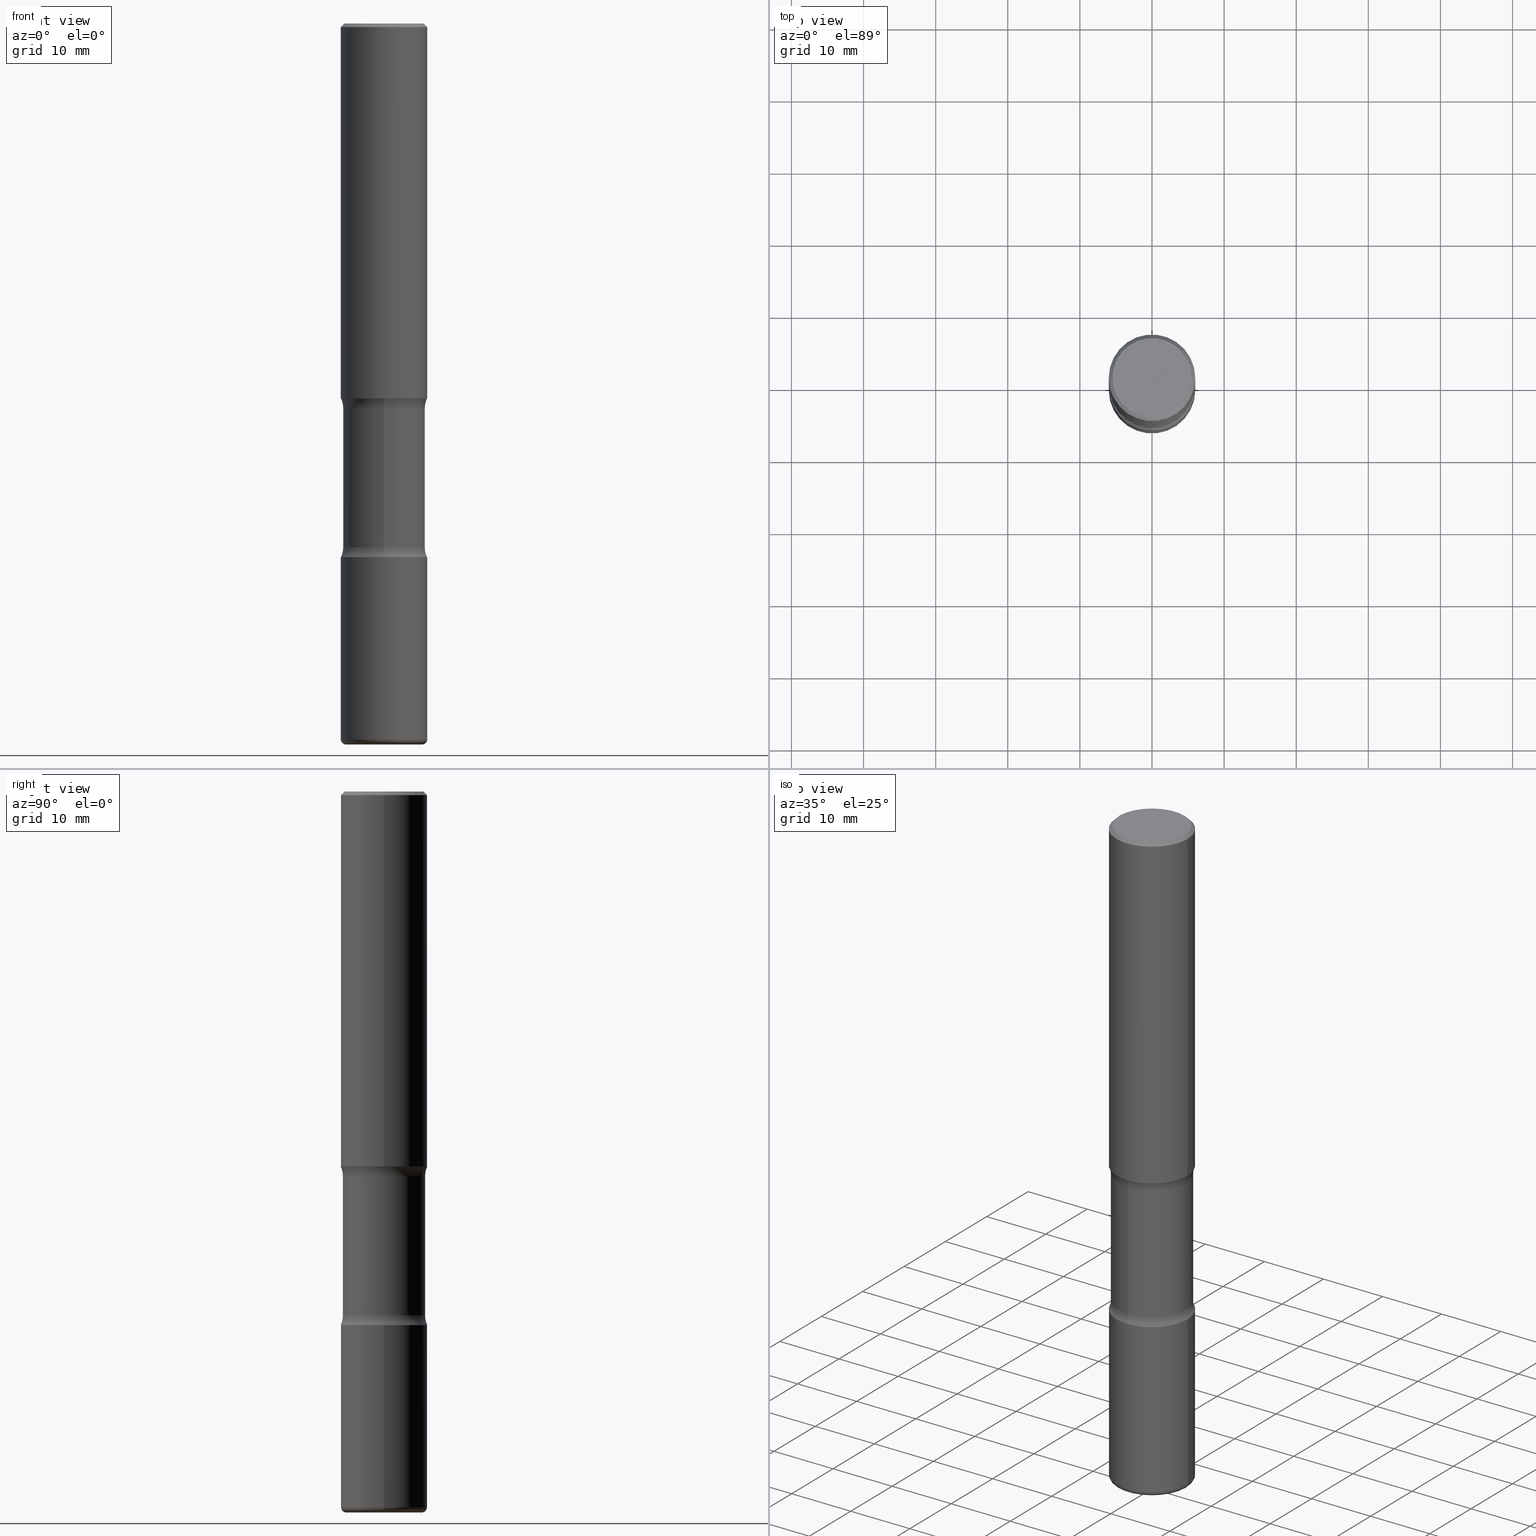
[diagram: canonical four-view strip — front | top / right | iso, engineering-drawing reading convention]
A machine part, canonical four-view strip (front | top / right | iso — engineering-drawing reading convention). The complete STEP part file that produces these views, byte-faithful:
ISO-10303-21;
HEADER;
FILE_DESCRIPTION (( 'STEP AP203' ),
    '1' );
FILE_NAME ('47693.STEP',
    '2024-03-02T07:18:12',
    ( '' ),
    ( '' ),
    'SwSTEP 2.0',
    'SolidWorks 2023',
    '' );
FILE_SCHEMA (( 'CONFIG_CONTROL_DESIGN' ));
ENDSEC;

DATA;
#1 = CARTESIAN_POINT ( 'NONE',  ( 0.2161999999999998368, -1.586759460484351002E-15, 4.268512490111238857E-18 ) ) ;
#2 = ORIENTED_EDGE ( 'NONE', *, *, #230, .F. ) ;
#3 = CARTESIAN_POINT ( 'NONE',  ( 6.994978375559792251E-29, -9.986975258939122984E-15, -2.860383398826405354 ) ) ;
#4 = CIRCLE ( 'NONE', #382, 0.2361999999999998823 ) ;
#5 = CIRCLE ( 'NONE', #410, 0.2362000000000002431 ) ;
#6 = VERTEX_POINT ( 'NONE', #487 ) ;
#7 = DATE_AND_TIME ( #210, #285 ) ;
#8 = EDGE_LOOP ( 'NONE', ( #550, #250 ) ) ;
#9 = EDGE_CURVE ( 'NONE', #55, #352, #85, .T. ) ;
#10 = ORIENTED_EDGE ( 'NONE', *, *, #50, .T. ) ;
#11 = EDGE_LOOP ( 'NONE', ( #391, #170, #16, #388 ) ) ;
#12 = AXIS2_PLACEMENT_3D ( 'NONE', #297, #470, #425 ) ;
#13 = CIRCLE ( 'NONE', #437, 0.2062000000000002442 ) ;
#14 = DIRECTION ( 'NONE',  ( -1.000000000000000000, 6.982962677686265922E-15, -4.883557194083112340E-29 ) ) ;
#15 = EDGE_CURVE ( 'NONE', #477, #130, #245, .T. ) ;
#16 = ORIENTED_EDGE ( 'NONE', *, *, #82, .T. ) ;
#17 = CARTESIAN_POINT ( 'NONE',  ( 0.000000000000000000, 0.000000000000000000, 0.000000000000000000 ) ) ;
#18 = DIRECTION ( 'NONE',  ( 6.860497997771531562E-15, 1.000000000000000000, 0.000000000000000000 ) ) ;
#19 = DIRECTION ( 'NONE',  ( -2.445468806185136597E-29, 3.491481338843145583E-15, 1.000000000000000000 ) ) ;
#20 = MANIFOLD_SOLID_BREP ( 'Body-Move/Copy2[2]', #127 ) ;
#21 = PLANE ( 'NONE',  #399 ) ;
#22 = EDGE_CURVE ( 'NONE', #467, #536, #532, .T. ) ;
#23 = VECTOR ( 'NONE', #240, 39.37007874015748143 ) ;
#24 = APPROVAL_PERSON_ORGANIZATION ( #344, #553, #386 ) ;
#25 = CYLINDRICAL_SURFACE ( 'NONE', #320, 0.2361999999999999933 ) ;
#26 = FACE_OUTER_BOUND ( 'NONE', #48, .T. ) ;
#27 = DIRECTION ( 'NONE',  ( 2.525985086076564115E-29, -3.376177443336566513E-15, -1.000000000000000000 ) ) ;
#28 = FACE_OUTER_BOUND ( 'NONE', #424, .T. ) ;
#29 =( LENGTH_UNIT ( ) NAMED_UNIT ( * ) SI_UNIT ( $, .METRE. ) );
#30 = CARTESIAN_POINT ( 'NONE',  ( -1.620449627073565067E-15, -0.2362000000000102629, -2.913399999999999768 ) ) ;
#31 = DIRECTION ( 'NONE',  ( -6.982962677686265922E-15, -1.000000000000000000, 3.376177443336566513E-15 ) ) ;
#32 = CIRCLE ( 'NONE', #319, 0.2062000000000002442 ) ;
#33 = AXIS2_PLACEMENT_3D ( 'NONE', #184, #234, #225 ) ;
#34 = ADVANCED_FACE ( 'NONE', ( #413 ), #484, .F. ) ;
#35 = CARTESIAN_POINT ( 'NONE',  ( 1.566976824872848494E-15, 0.2243999999999925499, -2.100216601173596320 ) ) ;
#36 = CARTESIAN_POINT ( 'NONE',  ( 4.890937612370289799E-31, -6.982962677686315028E-17, -0.02000000000000006981 ) ) ;
#37 = PERSON_AND_ORGANIZATION ( #434, #145 ) ;
#38 = CARTESIAN_POINT ( 'NONE',  ( 7.124628819939777829E-29, -1.017208173258562247E-14, -2.913400000000000212 ) ) ;
#39 = EDGE_LOOP ( 'NONE', ( #262, #268, #253, #385 ) ) ;
#40 = ADVANCED_FACE ( 'NONE', ( #28 ), #41, .T. ) ;
#41 = CONICAL_SURFACE ( 'NONE', #220, 0.2361999999999998823, 0.7853981633974479459 ) ;
#42 = DIRECTION ( 'NONE',  ( 6.982962677686265922E-15, 1.000000000000000000, -3.652203200085913934E-15 ) ) ;
#43 = EDGE_LOOP ( 'NONE', ( #421, #125, #56, #309 ) ) ;
#44 = PERSON_AND_ORGANIZATION ( #434, #145 ) ;
#45 = CARTESIAN_POINT ( 'NONE',  ( -0.2361999999999999933, 1.678301941865356591E-15, -1.161852468318208757E-29 ) ) ;
#46 = EDGE_LOOP ( 'NONE', ( #376, #353 ) ) ;
#47 = FACE_OUTER_BOUND ( 'NONE', #255, .T. ) ;
#48 = EDGE_LOOP ( 'NONE', ( #176, #343, #402, #52 ) ) ;
#49 = PERSON_AND_ORGANIZATION_ROLE ( 'creator' ) ;
#50 = EDGE_CURVE ( 'NONE', #305, #99, #278, .T. ) ;
#51 = APPROVAL_PERSON_ORGANIZATION ( #412, #338, #159 ) ;
#52 = ORIENTED_EDGE ( 'NONE', *, *, #82, .F. ) ;
#53 = COORDINATED_UNIVERSAL_TIME_OFFSET ( 5, 0, .BEHIND. ) ;
#54 = ADVANCED_BREP_SHAPE_REPRESENTATION ( '47693', ( #202, #20, #201, #246 ), #427 ) ;
#55 = VERTEX_POINT ( 'NONE', #30 ) ;
#56 = ORIENTED_EDGE ( 'NONE', *, *, #131, .T. ) ;
#57 = ADVANCED_FACE ( 'NONE', ( #545 ), #104, .T. ) ;
#58 = DIRECTION ( 'NONE',  ( 1.000000000000000000, -6.982962677686265133E-15, 0.000000000000000000 ) ) ;
#59 = ORIENTED_EDGE ( 'NONE', *, *, #205, .F. ) ;
#60 = AXIS2_PLACEMENT_3D ( 'NONE', #472, #556, #339 ) ;
#61 = AXIS2_PLACEMENT_3D ( 'NONE', #36, #200, #206 ) ;
#62 = CARTESIAN_POINT ( 'NONE',  ( 9.710227154047748282E-29, -1.362793696358492956E-14, -3.937000000000000277 ) ) ;
#63 = DIRECTION ( 'NONE',  ( 1.000000000000000000, -6.860497997771530774E-15, 4.842210945089756248E-29 ) ) ;
#64 = DIRECTION ( 'NONE',  ( 2.525985086076564115E-29, -3.376177443336566513E-15, -1.000000000000000000 ) ) ;
#65 = DIRECTION ( 'NONE',  ( 2.525985086076564115E-29, -3.376177443336566513E-15, -1.000000000000000000 ) ) ;
#66 = DIRECTION ( 'NONE',  ( 1.000000000000000000, -6.982962677686265922E-15, 0.000000000000000000 ) ) ;
#67 = DIRECTION ( 'NONE',  ( 1.000000000000000000, -6.982962677686267499E-15, 0.000000000000000000 ) ) ;
#68 = ADVANCED_FACE ( 'NONE', ( #451 ), #21, .F. ) ;
#69 = AXIS2_PLACEMENT_3D ( 'NONE', #299, #121, #117 ) ;
#70 = CIRCLE ( 'NONE', #180, 0.1249999999999999029 ) ;
#71 = CARTESIAN_POINT ( 'NONE',  ( -0.2362000000000000766, -1.196291564899481365E-14, -3.907000000000000028 ) ) ;
#72 = DIRECTION ( 'NONE',  ( -1.000000000000000000, 6.982962677686265922E-15, -4.876176775795935793E-29 ) ) ;
#73 = DIRECTION ( 'NONE',  ( 1.000000000000000000, -6.982962677686266711E-15, 4.876176775795935793E-29 ) ) ;
#74 = CARTESIAN_POINT ( 'NONE',  ( -1.620449627073587747E-15, -0.2362000000000074318, -2.047199999999999243 ) ) ;
#75 = EDGE_CURVE ( 'NONE', #99, #122, #274, .T. ) ;
#76 = LINE ( 'NONE', #244, #135 ) ;
#77 = LENGTH_MEASURE_WITH_UNIT ( LENGTH_MEASURE( 0.02539999999999999897 ), #29 );
#78 = DIRECTION ( 'NONE',  ( 2.525985086076564115E-29, -3.376177443336566513E-15, -1.000000000000000000 ) ) ;
#79 = DIMENSIONAL_EXPONENTS ( 1.000000000000000000, 0.000000000000000000, 0.000000000000000000, 0.000000000000000000, 0.000000000000000000, 0.000000000000000000, 0.000000000000000000 ) ;
#80 = DATE_AND_TIME ( #468, #154 ) ;
#81 = CARTESIAN_POINT ( 'NONE',  ( 0.2362000000000002153, -1.649375784469497708E-15, 1.151752954443001069E-29 ) ) ;
#82 = EDGE_CURVE ( 'NONE', #317, #536, #149, .T. ) ;
#83 = ORIENTED_EDGE ( 'NONE', *, *, #15, .F. ) ;
#84 = CARTESIAN_POINT ( 'NONE',  ( 0.000000000000000000, 0.000000000000000000, 0.000000000000000000 ) ) ;
#85 = CIRCLE ( 'NONE', #417, 0.1250000000000000000 ) ;
#86 = TOROIDAL_SURFACE ( 'NONE', #419, 0.3493999999999999884, 0.1250000000000000000 ) ;
#87 = DIRECTION ( 'NONE',  ( -2.445468806185136877E-29, 3.491481338843145188E-15, 1.000000000000000000 ) ) ;
#88 = PERSON_AND_ORGANIZATION ( #434, #145 ) ;
#89 = FACE_OUTER_BOUND ( 'NONE', #224, .T. ) ;
#90 = ORIENTED_EDGE ( 'NONE', *, *, #91, .F. ) ;
#91 = EDGE_CURVE ( 'NONE', #137, #141, #445, .T. ) ;
#92 = VERTEX_POINT ( 'NONE', #233 ) ;
#93 = AXIS2_PLACEMENT_3D ( 'NONE', #84, #292, #254 ) ;
#94 = AXIS2_PLACEMENT_3D ( 'NONE', #277, #64, #488 ) ;
#95 = ORIENTED_EDGE ( 'NONE', *, *, #280, .F. ) ;
#96 = DIRECTION ( 'NONE',  ( -2.445468806185136597E-29, 3.491481338843145583E-15, 1.000000000000000000 ) ) ;
#97 = ADVANCED_FACE ( 'NONE', ( #152 ), #329, .F. ) ;
#98 = DIRECTION ( 'NONE',  ( 2.525985086076564115E-29, -3.376177443336566513E-15, -1.000000000000000000 ) ) ;
#99 = VERTEX_POINT ( 'NONE', #364 ) ;
#100 = CARTESIAN_POINT ( 'NONE',  ( 1.649375784469567917E-15, 0.2361999999999899458, -2.913400000000000656 ) ) ;
#101 = ORIENTED_EDGE ( 'NONE', *, *, #351, .F. ) ;
#102 = AXIS2_PLACEMENT_3D ( 'NONE', #453, #65, #185 ) ;
#103 = PLANE ( 'NONE',  #94 ) ;
#104 = CYLINDRICAL_SURFACE ( 'NONE', #540, 0.2362000000000002153 ) ;
#105 = CARTESIAN_POINT ( 'NONE',  ( -1.579972688886713168E-15, -0.2244000000000099804, -2.860383398826404466 ) ) ;
#106 = EDGE_CURVE ( 'NONE', #122, #99, #4, .T. ) ;
#107 = CARTESIAN_POINT ( 'NONE',  ( 1.566976824872894642E-15, 0.2243999999999863049, -3.937000000000000721 ) ) ;
#108 = PERSON_AND_ORGANIZATION_ROLE ( 'design_owner' ) ;
#109 = DIRECTION ( 'NONE',  ( 1.000000000000000000, -6.982962677686267499E-15, 0.000000000000000000 ) ) ;
#110 = VECTOR ( 'NONE', #332, 39.37007874015748143 ) ;
#111 = AXIS2_PLACEMENT_3D ( 'NONE', #62, #318, #191 ) ;
#112 = COORDINATED_UNIVERSAL_TIME_OFFSET ( 5, 0, .BEHIND. ) ;
#113 = DIRECTION ( 'NONE',  ( -2.445468806185136597E-29, 3.491481338843145583E-15, 1.000000000000000000 ) ) ;
#114 = EDGE_CURVE ( 'NONE', #204, #208, #32, .T. ) ;
#115 = DIRECTION ( 'NONE',  ( 1.000000000000000000, 0.000000000000000000, 0.000000000000000000 ) ) ;
#116 = DIRECTION ( 'NONE',  ( 1.000000000000000000, -6.982962677686265922E-15, 0.000000000000000000 ) ) ;
#117 = DIRECTION ( 'NONE',  ( 1.000000000000000000, -6.982962677686277755E-15, 0.000000000000000000 ) ) ;
#118 = ORIENTED_EDGE ( 'NONE', *, *, #106, .T. ) ;
#119 = TOROIDAL_SURFACE ( 'NONE', #392, 0.3493999999999998218, 0.1249999999999999029 ) ;
#120 = VECTOR ( 'NONE', #261, 39.37007874015748143 ) ;
#121 = DIRECTION ( 'NONE',  ( -6.982962677686266711E-15, -1.000000000000000000, 3.491481338843145583E-15 ) ) ;
#122 = VERTEX_POINT ( 'NONE', #498 ) ;
#123 = DIRECTION ( 'NONE',  ( 2.525985086076564115E-29, -3.376177443336566513E-15, -1.000000000000000000 ) ) ;
#124 = CARTESIAN_POINT ( 'NONE',  ( 5.070539682259229331E-29, -7.426630284172150130E-15, -2.100216601173595432 ) ) ;
#125 = ORIENTED_EDGE ( 'NONE', *, *, #146, .T. ) ;
#126 = APPROVAL_DATE_TIME ( #7, #553 ) ;
#127 = CLOSED_SHELL ( 'NONE', ( #331, #40, #537, #68, #97, #500 ) ) ;
#128 = AXIS2_PLACEMENT_3D ( 'NONE', #447, #316, #270 ) ;
#129 = FACE_OUTER_BOUND ( 'NONE', #11, .T. ) ;
#130 = VERTEX_POINT ( 'NONE', #411 ) ;
#131 = EDGE_CURVE ( 'NONE', #559, #357, #426, .T. ) ;
#132 = APPROVAL_ROLE ( '' ) ;
#133 = EDGE_LOOP ( 'NONE', ( #101, #474, #510, #90 ) ) ;
#134 = ORIENTED_EDGE ( 'NONE', *, *, #493, .T. ) ;
#135 = VECTOR ( 'NONE', #418, 39.37007874015748143 ) ;
#136 = ADVANCED_FACE ( 'NONE', ( #26 ), #192, .T. ) ;
#137 = VERTEX_POINT ( 'NONE', #71 ) ;
#138 = DIRECTION ( 'NONE',  ( 2.525985086076564115E-29, -3.376177443336566513E-15, -1.000000000000000000 ) ) ;
#139 = ORIENTED_EDGE ( 'NONE', *, *, #432, .T. ) ;
#140 = FACE_OUTER_BOUND ( 'NONE', #133, .T. ) ;
#141 = VERTEX_POINT ( 'NONE', #155 ) ;
#142 = DIRECTION ( 'NONE',  ( 1.000000000000000000, -6.982962677686266711E-15, 4.876176775795936353E-29 ) ) ;
#143 = DIRECTION ( 'NONE',  ( -1.000000000000000000, 6.982962677686265922E-15, -4.883557194083112340E-29 ) ) ;
#144 = TOROIDAL_SURFACE ( 'NONE', #226, 0.2062000000000002442, 0.02999999999999969705 ) ;
#145 = ORGANIZATION ( 'UNSPECIFIED', 'UNSPECIFIED', '' ) ;
#146 = EDGE_CURVE ( 'NONE', #228, #559, #503, .T. ) ;
#147 = CARTESIAN_POINT ( 'NONE',  ( 6.990709676060807691E-29, -9.993088279580958225E-15, -2.860383398826405354 ) ) ;
#148 = DIRECTION ( 'NONE',  ( 6.982962677686265922E-15, 1.000000000000000000, -3.469747663417773452E-15 ) ) ;
#149 = LINE ( 'NONE', #107, #197 ) ;
#150 = CARTESIAN_POINT ( 'NONE',  ( 1.566976824872867821E-15, 0.2243999999999899686, -2.860383398826405799 ) ) ;
#151 = ADVANCED_FACE ( 'NONE', ( #361 ), #119, .F. ) ;
#152 = FACE_OUTER_BOUND ( 'NONE', #529, .T. ) ;
#153 = CIRCLE ( 'NONE', #189, 0.2362000000000002431 ) ;
#154 = LOCAL_TIME ( 2, 18, 12.00000000000000000, #112 ) ;
#155 = CARTESIAN_POINT ( 'NONE',  ( 0.2362000000000000766, -1.529059337532966657E-14, -3.907000000000000028 ) ) ;
#156 = PLANE ( 'NONE',  #504 ) ;
#157 = CARTESIAN_POINT ( 'NONE',  ( -0.2362000000000002153, 1.678301941865358169E-15, -1.161852468318209878E-29 ) ) ;
#158 = ORIENTED_EDGE ( 'NONE', *, *, #432, .F. ) ;
#159 = APPROVAL_ROLE ( '' ) ;
#160 = CARTESIAN_POINT ( 'NONE',  ( -1.579972688886734072E-15, -0.2244000000000073713, -2.100216601173594544 ) ) ;
#161 = EDGE_LOOP ( 'NONE', ( #134, #222 ) ) ;
#162 = EDGE_CURVE ( 'NONE', #317, #228, #347, .T. ) ;
#163 = AXIS2_PLACEMENT_3D ( 'NONE', #147, #138, #182 ) ;
#164 = DIRECTION ( 'NONE',  ( 2.525985086076564115E-29, -3.376177443336566513E-15, -1.000000000000000000 ) ) ;
#165 = ORIENTED_EDGE ( 'NONE', *, *, #457, .T. ) ;
#166 = PERSON_AND_ORGANIZATION ( #434, #145 ) ;
#167 = DIRECTION ( 'NONE',  ( -1.000000000000000000, 6.982962677686265922E-15, -4.876176775795935793E-29 ) ) ;
#168 = DIRECTION ( 'NONE',  ( 1.000000000000000000, -6.982962677686269077E-15, 0.000000000000000000 ) ) ;
#169 = ADVANCED_FACE ( 'NONE', ( #558 ), #249, .T. ) ;
#170 = ORIENTED_EDGE ( 'NONE', *, *, #214, .T. ) ;
#171 = COORDINATED_UNIVERSAL_TIME_OFFSET ( 5, 0, .BEHIND. ) ;
#172 = AXIS2_PLACEMENT_3D ( 'NONE', #543, #369, #109 ) ;
#173 = AXIS2_PLACEMENT_3D ( 'NONE', #422, #27, #506 ) ;
#174 = DIRECTION ( 'NONE',  ( 2.525985086076564115E-29, -3.376177443336566513E-15, -1.000000000000000000 ) ) ;
#175 = ORIENTED_EDGE ( 'NONE', *, *, #380, .T. ) ;
#176 = ORIENTED_EDGE ( 'NONE', *, *, #162, .T. ) ;
#177 = EDGE_CURVE ( 'NONE', #357, #559, #153, .T. ) ;
#178 = CARTESIAN_POINT ( 'NONE',  ( 5.006363740022212241E-29, -7.147760596879688202E-15, -2.047200000000000131 ) ) ;
#179 = AXIS2_PLACEMENT_3D ( 'NONE', #231, #284, #456 ) ;
#180 = AXIS2_PLACEMENT_3D ( 'NONE', #360, #14, #279 ) ;
#181 = EDGE_LOOP ( 'NONE', ( #165, #438, #480, #333 ) ) ;
#182 = DIRECTION ( 'NONE',  ( 6.982962677686265922E-15, 1.000000000000000000, -2.434802133390609421E-15 ) ) ;
#183 = EDGE_LOOP ( 'NONE', ( #531, #271, #139, #395 ) ) ;
#184 = CARTESIAN_POINT ( 'NONE',  ( -0.2062000000000002442, -1.217607846972284232E-14, -3.907000000000000028 ) ) ;
#185 = DIRECTION ( 'NONE',  ( 6.982962677686265922E-15, 1.000000000000000000, -3.376177443336566513E-15 ) ) ;
#186 = EDGE_CURVE ( 'NONE', #130, #122, #516, .T. ) ;
#187 = DIRECTION ( 'NONE',  ( -2.445468806185136597E-29, 3.491481338843145583E-15, 1.000000000000000000 ) ) ;
#188 = DIRECTION ( 'NONE',  ( 1.000000000000000000, -6.982962677686265922E-15, 4.876176775795935793E-29 ) ) ;
#189 = AXIS2_PLACEMENT_3D ( 'NONE', #519, #123, #430 ) ;
#190 = APPROVAL_PERSON_ORGANIZATION ( #166, #478, #132 ) ;
#191 = DIRECTION ( 'NONE',  ( 6.982962677686265922E-15, 1.000000000000000000, -2.434802133390609815E-15 ) ) ;
#192 = CYLINDRICAL_SURFACE ( 'NONE', #179, 0.2243999999999999329 ) ;
#193 = ADVANCED_FACE ( 'NONE', ( #384 ), #144, .T. ) ;
#194 = CARTESIAN_POINT ( 'NONE',  ( 1.509716530915769534E-15, 0.2161999999999998368, -7.527240092128373149E-16 ) ) ;
#195 = CC_DESIGN_PERSON_AND_ORGANIZATION_ASSIGNMENT ( #44, #263, ( #258 ) ) ;
#196 = CARTESIAN_POINT ( 'NONE',  ( 4.936620538380257512E-29, -7.247636831167487464E-15, -2.047200000000000131 ) ) ;
#197 = VECTOR ( 'NONE', #496, 39.37007874015748143 ) ;
#198 = CC_DESIGN_APPROVAL ( #478, ( #221 ) ) ;
#199 = FACE_OUTER_BOUND ( 'NONE', #433, .T. ) ;
#200 = DIRECTION ( 'NONE',  ( 2.445468806185136597E-29, -3.491481338843145583E-15, -1.000000000000000000 ) ) ;
#201 = MANIFOLD_SOLID_BREP ( 'Body-Move/Copy2[4]', #492 ) ;
#202 = MANIFOLD_SOLID_BREP ( 'Body-Move/Copy2[1]', #326 ) ;
#203 = DIRECTION ( 'NONE',  ( 2.438088387897960049E-29, -3.491481338843145188E-15, -1.000000000000000000 ) ) ;
#204 = VERTEX_POINT ( 'NONE', #381 ) ;
#205 = EDGE_CURVE ( 'NONE', #92, #6, #235, .T. ) ;
#206 = DIRECTION ( 'NONE',  ( -1.000000000000000000, 6.982962677686267499E-15, 0.000000000000000000 ) ) ;
#207 = DIRECTION ( 'NONE',  ( 6.982962677686265922E-15, 1.000000000000000000, -3.376177443336566513E-15 ) ) ;
#208 = VERTEX_POINT ( 'NONE', #342 ) ;
#209 = CC_DESIGN_PERSON_AND_ORGANIZATION_ASSIGNMENT ( #88, #49, ( #221 ) ) ;
#210 = CALENDAR_DATE ( 2024, 2, 3 ) ;
#211 = LOCAL_TIME ( 2, 18, 12.00000000000000000, #348 ) ;
#212 = DIRECTION ( 'NONE',  ( 1.000000000000000000, -6.982962677686266711E-15, 4.883557194083113462E-29 ) ) ;
#213 = ORIENTED_EDGE ( 'NONE', *, *, #9, .F. ) ;
#214 = EDGE_CURVE ( 'NONE', #228, #317, #354, .T. ) ;
#215 = CARTESIAN_POINT ( 'NONE',  ( 9.554446625765329033E-29, -1.364121759086017004E-14, -3.907000000000000028 ) ) ;
#216 = ORIENTED_EDGE ( 'NONE', *, *, #365, .F. ) ;
#217 = CARTESIAN_POINT ( 'NONE',  ( 0.2362000000000001321, -8.797136381349186305E-15, -2.047200000000000131 ) ) ;
#218 = ORIENTED_EDGE ( 'NONE', *, *, #15, .T. ) ;
#219 = PERSON_AND_ORGANIZATION ( #434, #145 ) ;
#220 = AXIS2_PLACEMENT_3D ( 'NONE', #539, #373, #459 ) ;
#221 = PRODUCT_DEFINITION_FORMATION_WITH_SPECIFIED_SOURCE ( 'ANY', '', #444, .NOT_KNOWN. ) ;
#222 = ORIENTED_EDGE ( 'NONE', *, *, #300, .T. ) ;
#223 = ORIENTED_EDGE ( 'NONE', *, *, #280, .T. ) ;
#224 = EDGE_LOOP ( 'NONE', ( #441, #350, #175, #522 ) ) ;
#225 = DIRECTION ( 'NONE',  ( -1.000000000000000000, 7.105427357601001859E-15, 0.000000000000000000 ) ) ;
#226 = AXIS2_PLACEMENT_3D ( 'NONE', #215, #420, #212 ) ;
#227 = AXIS2_PLACEMENT_3D ( 'NONE', #497, #187, #142 ) ;
#228 = VERTEX_POINT ( 'NONE', #160 ) ;
#229 = CARTESIAN_POINT ( 'NONE',  ( 7.124628819939777829E-29, -1.017208173258562247E-14, -2.913400000000000212 ) ) ;
#230 = EDGE_CURVE ( 'NONE', #137, #92, #252, .T. ) ;
#231 = CARTESIAN_POINT ( 'NONE',  ( 9.710227154047748282E-29, -1.362793696358492956E-14, -3.937000000000000277 ) ) ;
#232 = DIRECTION ( 'NONE',  ( 2.525985086076564115E-29, -3.376177443336566513E-15, -1.000000000000000000 ) ) ;
#233 = CARTESIAN_POINT ( 'NONE',  ( -0.2362000000000001321, -1.022834771985753829E-14, -2.913400000000000212 ) ) ;
#234 = DIRECTION ( 'NONE',  ( 7.105427357601001859E-15, 1.000000000000000000, -3.491481338843145583E-15 ) ) ;
#235 = CIRCLE ( 'NONE', #547, 0.2362000000000001321 ) ;
#236 = DIRECTION ( 'NONE',  ( 2.525985086076564115E-29, -3.376177443336566513E-15, -1.000000000000000000 ) ) ;
#237 = AXIS2_PLACEMENT_3D ( 'NONE', #38, #259, #387 ) ;
#238 = CC_DESIGN_DATE_AND_TIME_ASSIGNMENT ( #239, #286, ( #439 ) ) ;
#239 = DATE_AND_TIME ( #454, #466 ) ;
#240 = DIRECTION ( 'NONE',  ( 0.7071067811865472397, -7.319954787623254468E-15, -0.7071067811865477948 ) ) ;
#241 = CC_DESIGN_PERSON_AND_ORGANIZATION_ASSIGNMENT ( #219, #481, ( #221 ) ) ;
#242 = CARTESIAN_POINT ( 'NONE',  ( 4.890937612370289799E-31, -6.982962677686315028E-17, -0.02000000000000006981 ) ) ;
#243 =( NAMED_UNIT ( * ) PLANE_ANGLE_UNIT ( ) SI_UNIT ( $, .RADIAN. ) );
#244 = CARTESIAN_POINT ( 'NONE',  ( -0.2361999999999998823, 1.579546157692632438E-15, -0.02000000000000006981 ) ) ;
#245 = CIRCLE ( 'NONE', #371, 0.2362000000000001321 ) ;
#246 = AXIS2_PLACEMENT_3D ( 'NONE', #463, #328, #115 ) ;
#247 = APPLICATION_PROTOCOL_DEFINITION ( 'international standard', 'config_control_design', 1994, #521 ) ;
#248 = EDGE_CURVE ( 'NONE', #6, #92, #464, .T. ) ;
#249 = PLANE ( 'NONE',  #283 ) ;
#250 = ORIENTED_EDGE ( 'NONE', *, *, #131, .F. ) ;
#251 = APPROVAL_DATE_TIME ( #80, #338 ) ;
#252 = LINE ( 'NONE', #157, #110 ) ;
#253 = ORIENTED_EDGE ( 'NONE', *, *, #457, .F. ) ;
#254 = DIRECTION ( 'NONE',  ( 1.000000000000000000, -6.982962677686266711E-15, 4.876176775795935793E-29 ) ) ;
#255 = EDGE_LOOP ( 'NONE', ( #302, #517 ) ) ;
#256 = AXIS2_PLACEMENT_3D ( 'NONE', #404, #63, #18 ) ;
#257 = CC_DESIGN_PERSON_AND_ORGANIZATION_ASSIGNMENT ( #377, #108, ( #444 ) ) ;
#258 = SECURITY_CLASSIFICATION ( '', '', #341 ) ;
#259 = DIRECTION ( 'NONE',  ( 2.525985086076564115E-29, -3.376177443336566513E-15, -1.000000000000000000 ) ) ;
#260 = DATE_AND_TIME ( #527, #211 ) ;
#261 = DIRECTION ( 'NONE',  ( -2.445468806185136877E-29, 3.491481338843145188E-15, 1.000000000000000000 ) ) ;
#262 = ORIENTED_EDGE ( 'NONE', *, *, #469, .T. ) ;
#263 = PERSON_AND_ORGANIZATION_ROLE ( 'classification_officer' ) ;
#264 = ORIENTED_EDGE ( 'NONE', *, *, #162, .F. ) ;
#265 = CIRCLE ( 'NONE', #69, 0.02999999999999967970 ) ;
#266 = CC_DESIGN_SECURITY_CLASSIFICATION ( #258, ( #221 ) ) ;
#267 = EDGE_CURVE ( 'NONE', #208, #141, #265, .T. ) ;
#268 = ORIENTED_EDGE ( 'NONE', *, *, #351, .T. ) ;
#269 = DIRECTION ( 'NONE',  ( 1.000000000000000000, -6.982962677686269077E-15, 0.000000000000000000 ) ) ;
#270 = DIRECTION ( 'NONE',  ( 1.000000000000000000, -6.982962677686266711E-15, 4.883557194083113462E-29 ) ) ;
#271 = ORIENTED_EDGE ( 'NONE', *, *, #365, .T. ) ;
#272 = ADVANCED_FACE ( 'NONE', ( #345 ), #423, .T. ) ;
#273 = DIRECTION ( 'NONE',  ( -2.445468806185136597E-29, 3.491481338843145583E-15, 1.000000000000000000 ) ) ;
#274 = CIRCLE ( 'NONE', #172, 0.2361999999999998823 ) ;
#275 = CONICAL_SURFACE ( 'NONE', #61, 0.2361999999999998823, 0.7853981633974479459 ) ;
#276 = ORIENTED_EDGE ( 'NONE', *, *, #493, .F. ) ;
#277 = CARTESIAN_POINT ( 'NONE',  ( 5.006363740022212241E-29, -7.147760596879688202E-15, -2.047200000000000131 ) ) ;
#278 = LINE ( 'NONE', #287, #23 ) ;
#279 = DIRECTION ( 'NONE',  ( -6.982962677686264344E-15, -1.000000000000000000, 0.000000000000000000 ) ) ;
#280 = EDGE_CURVE ( 'NONE', #305, #398, #409, .T. ) ;
#281 = DIRECTION ( 'NONE',  ( -1.000000000000000000, 6.982962677686265922E-15, -4.876176775795935793E-29 ) ) ;
#282 = COORDINATED_UNIVERSAL_TIME_OFFSET ( 5, 0, .BEHIND. ) ;
#283 = AXIS2_PLACEMENT_3D ( 'NONE', #513, #203, #167 ) ;
#284 = DIRECTION ( 'NONE',  ( 2.525985086076564115E-29, -3.376177443336566513E-15, -1.000000000000000000 ) ) ;
#285 = LOCAL_TIME ( 2, 18, 12.00000000000000000, #53 ) ;
#286 = DATE_TIME_ROLE ( 'creation_date' ) ;
#287 = CARTESIAN_POINT ( 'NONE',  ( 0.2361999999999998823, -1.690279253850498179E-15, -0.02000000000000006981 ) ) ;
#288 = FACE_OUTER_BOUND ( 'NONE', #314, .T. ) ;
#289 = CARTESIAN_POINT ( 'NONE',  ( -1.539495750699834052E-15, -0.2244000000000135608, -3.936999999999999389 ) ) ;
#290 = FACE_OUTER_BOUND ( 'NONE', #295, .T. ) ;
#291 = EDGE_CURVE ( 'NONE', #141, #6, #301, .T. ) ;
#292 = DIRECTION ( 'NONE',  ( -2.445468806185136597E-29, 3.491481338843145583E-15, 1.000000000000000000 ) ) ;
#293 = PRODUCT_DEFINITION_SHAPE ( 'NONE', 'NONE',  #439 ) ;
#294 = AXIS2_PLACEMENT_3D ( 'NONE', #196, #236, #148 ) ;
#295 = EDGE_LOOP ( 'NONE', ( #298, #379, #526, #118 ) ) ;
#296 = AXIS2_PLACEMENT_3D ( 'NONE', #229, #232, #403 ) ;
#297 = CARTESIAN_POINT ( 'NONE',  ( -1.043851414335219820E-46, 1.490343170380447200E-32, 4.268512490100411279E-18 ) ) ;
#298 = ORIENTED_EDGE ( 'NONE', *, *, #50, .F. ) ;
#299 = CARTESIAN_POINT ( 'NONE',  ( 0.2062000000000002442, -1.508110449499907983E-14, -3.907000000000000028 ) ) ;
#300 = EDGE_CURVE ( 'NONE', #55, #467, #554, .T. ) ;
#301 = LINE ( 'NONE', #81, #485 ) ;
#302 = ORIENTED_EDGE ( 'NONE', *, *, #248, .T. ) ;
#303 = AXIS2_PLACEMENT_3D ( 'NONE', #124, #509, #549 ) ;
#304 = DIRECTION ( 'NONE',  ( -2.445468806185136597E-29, 3.491481338843145583E-15, 1.000000000000000000 ) ) ;
#305 = VERTEX_POINT ( 'NONE', #1 ) ;
#306 = APPROVAL_DATE_TIME ( #260, #478 ) ;
#307 = EDGE_LOOP ( 'NONE', ( #2, #528, #346, #59 ) ) ;
#308 = EDGE_CURVE ( 'NONE', #228, #352, #523, .T. ) ;
#309 = ORIENTED_EDGE ( 'NONE', *, *, #397, .F. ) ;
#310 = VECTOR ( 'NONE', #462, 39.37007874015748143 ) ;
#311 = CIRCLE ( 'NONE', #446, 0.2243999999999999606 ) ;
#312 = ORIENTED_EDGE ( 'NONE', *, *, #22, .T. ) ;
#313 = DIRECTION ( 'NONE',  ( 1.000000000000000000, -6.982962677686266711E-15, 4.876217060660159599E-29 ) ) ;
#314 = EDGE_LOOP ( 'NONE', ( #213, #276, #312, #428 ) ) ;
#315 = EDGE_CURVE ( 'NONE', #398, #122, #76, .T. ) ;
#316 = DIRECTION ( 'NONE',  ( -2.445468806185136597E-29, 3.491481338843145583E-15, 1.000000000000000000 ) ) ;
#317 = VERTEX_POINT ( 'NONE', #35 ) ;
#318 = DIRECTION ( 'NONE',  ( 2.525985086076564115E-29, -3.376177443336566513E-15, -1.000000000000000000 ) ) ;
#319 = AXIS2_PLACEMENT_3D ( 'NONE', #323, #542, #327 ) ;
#320 = AXIS2_PLACEMENT_3D ( 'NONE', #17, #304, #479 ) ;
#321 = CARTESIAN_POINT ( 'NONE',  ( 0.000000000000000000, 0.000000000000000000, 0.000000000000000000 ) ) ;
#322 = CYLINDRICAL_SURFACE ( 'NONE', #227, 0.2361999999999999933 ) ;
#323 = CARTESIAN_POINT ( 'NONE',  ( 9.627810689950881427E-29, -1.374596203102546184E-14, -3.936999999999999389 ) ) ;
#324 = DIRECTION ( 'NONE',  ( 2.438088387897960049E-29, -3.491481338843145188E-15, -1.000000000000000000 ) ) ;
#325 = CARTESIAN_POINT ( 'NONE',  ( 7.124628819939777829E-29, -1.017208173258562247E-14, -2.913400000000000212 ) ) ;
#326 = CLOSED_SHELL ( 'NONE', ( #57, #193, #169, #450, #272, #520 ) ) ;
#327 = DIRECTION ( 'NONE',  ( 1.000000000000000000, -6.982962677686265133E-15, 0.000000000000000000 ) ) ;
#328 = DIRECTION ( 'NONE',  ( 0.000000000000000000, 0.000000000000000000, 1.000000000000000000 ) ) ;
#329 = PLANE ( 'NONE',  #336 ) ;
#330 = UNCERTAINTY_MEASURE_WITH_UNIT (LENGTH_MEASURE( 1.000000000000000082E-05 ), #414, 'distance_accuracy_value', 'NONE');
#331 = ADVANCED_FACE ( 'NONE', ( #199 ), #322, .T. ) ;
#332 = DIRECTION ( 'NONE',  ( -2.445468806185136877E-29, 3.491481338843145188E-15, 1.000000000000000000 ) ) ;
#333 = ORIENTED_EDGE ( 'NONE', *, *, #291, .F. ) ;
#334 = DIRECTION ( 'NONE',  ( -2.525985086076564115E-29, 3.376177443336566513E-15, 1.000000000000000000 ) ) ;
#335 = CARTESIAN_POINT ( 'NONE',  ( 5.070539682259229331E-29, -7.426630284172150130E-15, -2.100216601173595432 ) ) ;
#336 = AXIS2_PLACEMENT_3D ( 'NONE', #507, #501, #188 ) ;
#337 = ORIENTED_EDGE ( 'NONE', *, *, #75, .T. ) ;
#338 = APPROVAL ( #502, 'UNSPECIFIED' ) ;
#339 = DIRECTION ( 'NONE',  ( 1.000000000000000000, -6.982962677686269077E-15, 0.000000000000000000 ) ) ;
#340 = ORIENTED_EDGE ( 'NONE', *, *, #186, .T. ) ;
#341 = SECURITY_CLASSIFICATION_LEVEL ( 'unclassified' ) ;
#342 = CARTESIAN_POINT ( 'NONE',  ( 0.2062000000000002442, -1.518584893516437320E-14, -3.936999999999999389 ) ) ;
#343 = ORIENTED_EDGE ( 'NONE', *, *, #308, .T. ) ;
#344 = PERSON_AND_ORGANIZATION ( #434, #145 ) ;
#345 = FACE_OUTER_BOUND ( 'NONE', #307, .T. ) ;
#346 = ORIENTED_EDGE ( 'NONE', *, *, #291, .T. ) ;
#347 = CIRCLE ( 'NONE', #436, 0.2243999999999999606 ) ;
#348 = COORDINATED_UNIVERSAL_TIME_OFFSET ( 5, 0, .BEHIND. ) ;
#349 = CIRCLE ( 'NONE', #163, 0.2243999999999999606 ) ;
#350 = ORIENTED_EDGE ( 'NONE', *, *, #9, .T. ) ;
#351 = EDGE_CURVE ( 'NONE', #204, #137, #363, .T. ) ;
#352 = VERTEX_POINT ( 'NONE', #105 ) ;
#353 = ORIENTED_EDGE ( 'NONE', *, *, #114, .F. ) ;
#354 = CIRCLE ( 'NONE', #303, 0.2243999999999999606 ) ;
#355 = CYLINDRICAL_SURFACE ( 'NONE', #111, 0.2243999999999999329 ) ;
#356 = ADVANCED_FACE ( 'NONE', ( #538 ), #103, .F. ) ;
#357 = VERTEX_POINT ( 'NONE', #405 ) ;
#358 = CARTESIAN_POINT ( 'NONE',  ( -0.2161999999999998368, 1.544631344304201183E-15, 4.268512490089730842E-18 ) ) ;
#359 = ORIENTED_EDGE ( 'NONE', *, *, #146, .F. ) ;
#360 = CARTESIAN_POINT ( 'NONE',  ( 2.439847159583631044E-15, 0.3493999999999924388, -2.100216601173596320 ) ) ;
#361 = FACE_OUTER_BOUND ( 'NONE', #471, .T. ) ;
#362 = CARTESIAN_POINT ( 'NONE',  ( 5.006363740022212241E-29, -7.147760596879688202E-15, -2.047200000000000131 ) ) ;
#363 = CIRCLE ( 'NONE', #33, 0.02999999999999967970 ) ;
#364 = CARTESIAN_POINT ( 'NONE',  ( 0.2361999999999998823, -1.690279253850498179E-15, -0.02000000000000006981 ) ) ;
#365 = EDGE_CURVE ( 'NONE', #130, #477, #525, .T. ) ;
#366 = DIRECTION ( 'NONE',  ( 6.982962677686265922E-15, 1.000000000000000000, -2.434802133390609421E-15 ) ) ;
#367 = CARTESIAN_POINT ( 'NONE',  ( 2.439847159583651160E-15, 0.3493999999999899964, -2.860383398826406243 ) ) ;
#368 =( NAMED_UNIT ( * ) SI_UNIT ( $, .STERADIAN. ) SOLID_ANGLE_UNIT ( ) );
#369 = DIRECTION ( 'NONE',  ( -2.445468806185136597E-29, 3.491481338843145583E-15, 1.000000000000000000 ) ) ;
#370 = PLANE ( 'NONE',  #486 ) ;
#371 = AXIS2_PLACEMENT_3D ( 'NONE', #178, #96, #269 ) ;
#372 = ADVANCED_FACE ( 'NONE', ( #129 ), #355, .T. ) ;
#373 = DIRECTION ( 'NONE',  ( 2.445468806185136597E-29, -3.491481338843145583E-15, -1.000000000000000000 ) ) ;
#374 = CIRCLE ( 'NONE', #555, 0.2161999999999998368 ) ;
#375 = DIRECTION ( 'NONE',  ( -2.445468806185136597E-29, 3.491481338843145583E-15, 1.000000000000000000 ) ) ;
#376 = ORIENTED_EDGE ( 'NONE', *, *, #469, .F. ) ;
#377 = PERSON_AND_ORGANIZATION ( #434, #145 ) ;
#378 = DIRECTION ( 'NONE',  ( -2.445468806185136877E-29, 3.491481338843145188E-15, 1.000000000000000000 ) ) ;
#379 = ORIENTED_EDGE ( 'NONE', *, *, #407, .F. ) ;
#380 = EDGE_CURVE ( 'NONE', #352, #536, #349, .T. ) ;
#381 = CARTESIAN_POINT ( 'NONE',  ( -0.2062000000000002442, -1.212186927944147467E-14, -3.936999999999999389 ) ) ;
#382 = AXIS2_PLACEMENT_3D ( 'NONE', #242, #416, #67 ) ;
#383 = APPROVAL_STATUS ( 'not_yet_approved' ) ;
#384 = FACE_OUTER_BOUND ( 'NONE', #39, .T. ) ;
#385 = ORIENTED_EDGE ( 'NONE', *, *, #267, .F. ) ;
#386 = APPROVAL_ROLE ( '' ) ;
#387 = DIRECTION ( 'NONE',  ( 6.982962677686265922E-15, 1.000000000000000000, -2.313165108945183485E-15 ) ) ;
#388 = ORIENTED_EDGE ( 'NONE', *, *, #380, .F. ) ;
#389 = CARTESIAN_POINT ( 'NONE',  ( -1.043851414335219820E-46, 1.490343170380447200E-32, 4.268512490100411279E-18 ) ) ;
#390 = EDGE_CURVE ( 'NONE', #536, #352, #311, .T. ) ;
#391 = ORIENTED_EDGE ( 'NONE', *, *, #308, .F. ) ;
#392 = AXIS2_PLACEMENT_3D ( 'NONE', #465, #164, #207 ) ;
#393 = DATE_AND_TIME ( #518, #533 ) ;
#394 = TOROIDAL_SURFACE ( 'NONE', #128, 0.2062000000000002442, 0.02999999999999969705 ) ;
#395 = ORIENTED_EDGE ( 'NONE', *, *, #106, .F. ) ;
#396 = DIRECTION ( 'NONE',  ( 6.860497997771529985E-15, 1.000000000000000000, 0.000000000000000000 ) ) ;
#397 = EDGE_CURVE ( 'NONE', #317, #357, #70, .T. ) ;
#398 = VERTEX_POINT ( 'NONE', #358 ) ;
#399 = AXIS2_PLACEMENT_3D ( 'NONE', #194, #448, #281 ) ;
#400 = AXIS2_PLACEMENT_3D ( 'NONE', #362, #534, #541 ) ;
#401 = CARTESIAN_POINT ( 'NONE',  ( 6.990709676060807691E-29, -9.993088279580958225E-15, -2.860383398826405354 ) ) ;
#402 = ORIENTED_EDGE ( 'NONE', *, *, #390, .F. ) ;
#403 = DIRECTION ( 'NONE',  ( 6.982962677686265922E-15, 1.000000000000000000, -2.313165108945183485E-15 ) ) ;
#404 = CARTESIAN_POINT ( 'NONE',  ( -2.397058000421320660E-15, -0.3494000000000072048, -2.100216601173594544 ) ) ;
#405 = CARTESIAN_POINT ( 'NONE',  ( 1.649375784469546815E-15, 0.2361999999999930266, -2.047200000000001019 ) ) ;
#406 = DIRECTION ( 'NONE',  ( -6.982962677686266711E-15, -1.000000000000000000, 0.000000000000000000 ) ) ;
#407 = EDGE_CURVE ( 'NONE', #398, #305, #374, .T. ) ;
#408 = FACE_OUTER_BOUND ( 'NONE', #183, .T. ) ;
#409 = CIRCLE ( 'NONE', #12, 0.2161999999999998368 ) ;
#410 = AXIS2_PLACEMENT_3D ( 'NONE', #495, #442, #66 ) ;
#411 = CARTESIAN_POINT ( 'NONE',  ( -0.2362000000000001598, -1.930493169962915017E-15, -2.047200000000000131 ) ) ;
#412 = PERSON_AND_ORGANIZATION ( #434, #145 ) ;
#413 = FACE_OUTER_BOUND ( 'NONE', #43, .T. ) ;
#414 =( CONVERSION_BASED_UNIT ( 'INCH', #77 ) LENGTH_UNIT ( ) NAMED_UNIT ( #79 ) );
#415 = CC_DESIGN_PERSON_AND_ORGANIZATION_ASSIGNMENT ( #37, #499, ( #439 ) ) ;
#416 = DIRECTION ( 'NONE',  ( -2.445468806185136597E-29, 3.491481338843145583E-15, 1.000000000000000000 ) ) ;
#417 = AXIS2_PLACEMENT_3D ( 'NONE', #491, #483, #396 ) ;
#418 = DIRECTION ( 'NONE',  ( -0.7071067811865472397, 2.468850131082253905E-15, -0.7071067811865477948 ) ) ;
#419 = AXIS2_PLACEMENT_3D ( 'NONE', #3, #174, #458 ) ;
#420 = DIRECTION ( 'NONE',  ( -2.445468806185136597E-29, 3.491481338843145583E-15, 1.000000000000000000 ) ) ;
#421 = ORIENTED_EDGE ( 'NONE', *, *, #214, .F. ) ;
#422 = CARTESIAN_POINT ( 'NONE',  ( 6.994978375559792251E-29, -9.986975258939122984E-15, -2.860383398826405354 ) ) ;
#423 = CYLINDRICAL_SURFACE ( 'NONE', #93, 0.2362000000000002153 ) ;
#424 = EDGE_LOOP ( 'NONE', ( #95, #10, #337, #515 ) ) ;
#425 = DIRECTION ( 'NONE',  ( 1.000000000000000000, -6.982962677686266711E-15, 4.876217060660159599E-29 ) ) ;
#426 = CIRCLE ( 'NONE', #294, 0.2362000000000002431 ) ;
#427 =( GEOMETRIC_REPRESENTATION_CONTEXT ( 3 ) GLOBAL_UNCERTAINTY_ASSIGNED_CONTEXT ( ( #330 ) ) GLOBAL_UNIT_ASSIGNED_CONTEXT ( ( #414, #243, #368 ) ) REPRESENTATION_CONTEXT ( 'NONE', 'WORKASPACE' ) );
#428 = ORIENTED_EDGE ( 'NONE', *, *, #390, .T. ) ;
#429 = APPROVAL_STATUS ( 'not_yet_approved' ) ;
#430 = DIRECTION ( 'NONE',  ( 6.982962677686265922E-15, 1.000000000000000000, -3.469747663417773452E-15 ) ) ;
#431 = DATE_TIME_ROLE ( 'classification_date' ) ;
#432 = EDGE_CURVE ( 'NONE', #477, #99, #490, .T. ) ;
#433 = EDGE_LOOP ( 'NONE', ( #218, #340, #535, #158 ) ) ;
#434 = PERSON ( 'UNSPECIFIED', 'UNSPECIFIED', 'UNSPECIFIED', ('UNSPECIFIED'), ('UNSPECIFIED'), ('UNSPECIFIED') ) ;
#435 = ORIENTED_EDGE ( 'NONE', *, *, #407, .T. ) ;
#436 = AXIS2_PLACEMENT_3D ( 'NONE', #335, #78, #42 ) ;
#437 = AXIS2_PLACEMENT_3D ( 'NONE', #449, #273, #58 ) ;
#438 = ORIENTED_EDGE ( 'NONE', *, *, #230, .T. ) ;
#439 = PRODUCT_DEFINITION ( 'UNKNOWN', '', #221, #440 ) ;
#440 = DESIGN_CONTEXT ( 'detailed design', #546, 'design' ) ;
#441 = ORIENTED_EDGE ( 'NONE', *, *, #300, .F. ) ;
#442 = DIRECTION ( 'NONE',  ( -2.445468806185136597E-29, 3.491481338843145583E-15, 1.000000000000000000 ) ) ;
#443 = ORIENTED_EDGE ( 'NONE', *, *, #177, .T. ) ;
#444 = PRODUCT ( '47693', '47693', '', ( #544 ) ) ;
#445 = CIRCLE ( 'NONE', #475, 0.2362000000000002431 ) ;
#446 = AXIS2_PLACEMENT_3D ( 'NONE', #401, #98, #366 ) ;
#447 = CARTESIAN_POINT ( 'NONE',  ( 9.554446625765329033E-29, -1.364121759086017004E-14, -3.907000000000000028 ) ) ;
#448 = DIRECTION ( 'NONE',  ( 2.438088387897960049E-29, -3.491481338843145188E-15, -1.000000000000000000 ) ) ;
#449 = CARTESIAN_POINT ( 'NONE',  ( 9.627810689950881427E-29, -1.374596203102546184E-14, -3.936999999999999389 ) ) ;
#450 = ADVANCED_FACE ( 'NONE', ( #140 ), #394, .T. ) ;
#451 = FACE_OUTER_BOUND ( 'NONE', #482, .T. ) ;
#452 = CARTESIAN_POINT ( 'NONE',  ( 0.2361999999999999933, -1.649375784469496131E-15, 1.151752954443000088E-29 ) ) ;
#453 = CARTESIAN_POINT ( 'NONE',  ( 5.088323202950023588E-29, -7.401163270367792936E-15, -2.100216601173595432 ) ) ;
#454 = CALENDAR_DATE ( 2024, 2, 3 ) ;
#455 = CC_DESIGN_APPROVAL ( #338, ( #439 ) ) ;
#456 = DIRECTION ( 'NONE',  ( 6.982962677686265922E-15, 1.000000000000000000, -2.434802133390609815E-15 ) ) ;
#457 = EDGE_CURVE ( 'NONE', #141, #137, #5, .T. ) ;
#458 = DIRECTION ( 'NONE',  ( 6.982962677686265922E-15, 1.000000000000000000, -3.376177443336566513E-15 ) ) ;
#459 = DIRECTION ( 'NONE',  ( -1.000000000000000000, 6.982962677686267499E-15, 0.000000000000000000 ) ) ;
#460 = PRODUCT_RELATED_PRODUCT_CATEGORY ( 'detail', '', ( #444 ) ) ;
#461 = CARTESIAN_POINT ( 'NONE',  ( 7.124628819939777829E-29, -1.017208173258562247E-14, -2.913400000000000212 ) ) ;
#462 = DIRECTION ( 'NONE',  ( 2.525985086076564115E-29, -3.376177443336566513E-15, -1.000000000000000000 ) ) ;
#463 = CARTESIAN_POINT ( 'NONE',  ( 0.000000000000000000, 0.000000000000000000, 0.000000000000000000 ) ) ;
#464 = CIRCLE ( 'NONE', #60, 0.2362000000000001321 ) ;
#465 = CARTESIAN_POINT ( 'NONE',  ( 5.088323202950023588E-29, -7.401163270367792936E-15, -2.100216601173595432 ) ) ;
#466 = LOCAL_TIME ( 2, 18, 12.00000000000000000, #282 ) ;
#467 = VERTEX_POINT ( 'NONE', #100 ) ;
#468 = CALENDAR_DATE ( 2024, 2, 3 ) ;
#469 = EDGE_CURVE ( 'NONE', #208, #204, #13, .T. ) ;
#470 = DIRECTION ( 'NONE',  ( -2.445468806185136597E-29, 3.491481338843145583E-15, 1.000000000000000000 ) ) ;
#471 = EDGE_LOOP ( 'NONE', ( #359, #264, #489, #443 ) ) ;
#472 = CARTESIAN_POINT ( 'NONE',  ( 7.124628819939777829E-29, -1.017208173258562247E-14, -2.913400000000000212 ) ) ;
#473 = CC_DESIGN_DATE_AND_TIME_ASSIGNMENT ( #393, #431, ( #258 ) ) ;
#474 = ORIENTED_EDGE ( 'NONE', *, *, #114, .T. ) ;
#475 = AXIS2_PLACEMENT_3D ( 'NONE', #505, #113, #116 ) ;
#476 = CC_DESIGN_APPROVAL ( #553, ( #258 ) ) ;
#477 = VERTEX_POINT ( 'NONE', #217 ) ;
#478 = APPROVAL ( #383, 'UNSPECIFIED' ) ;
#479 = DIRECTION ( 'NONE',  ( 1.000000000000000000, -6.982962677686266711E-15, 4.876176775795936353E-29 ) ) ;
#480 = ORIENTED_EDGE ( 'NONE', *, *, #248, .F. ) ;
#481 = PERSON_AND_ORGANIZATION_ROLE ( 'design_supplier' ) ;
#482 = EDGE_LOOP ( 'NONE', ( #435, #223 ) ) ;
#483 = DIRECTION ( 'NONE',  ( 1.000000000000000000, -6.860497997771530774E-15, 4.842210945089756248E-29 ) ) ;
#484 = TOROIDAL_SURFACE ( 'NONE', #102, 0.3493999999999998218, 0.1249999999999999029 ) ;
#485 = VECTOR ( 'NONE', #87, 39.37007874015748143 ) ;
#486 = AXIS2_PLACEMENT_3D ( 'NONE', #325, #324, #72 ) ;
#487 = CARTESIAN_POINT ( 'NONE',  ( 0.2362000000000001321, -1.182145751705511899E-14, -2.913400000000000212 ) ) ;
#488 = DIRECTION ( 'NONE',  ( 6.982962677686265922E-15, 1.000000000000000000, -3.376177443336566513E-15 ) ) ;
#489 = ORIENTED_EDGE ( 'NONE', *, *, #397, .T. ) ;
#490 = LINE ( 'NONE', #452, #120 ) ;
#491 = CARTESIAN_POINT ( 'NONE',  ( -2.397058000421302516E-15, -0.3494000000000099249, -2.860383398826404022 ) ) ;
#492 = CLOSED_SHELL ( 'NONE', ( #136, #511, #34, #151, #356, #530, #557, #372 ) ) ;
#493 = EDGE_CURVE ( 'NONE', #467, #55, #494, .T. ) ;
#494 = CIRCLE ( 'NONE', #296, 0.2362000000000001321 ) ;
#495 = CARTESIAN_POINT ( 'NONE',  ( 9.554446625765329033E-29, -1.364121759086017004E-14, -3.907000000000000028 ) ) ;
#496 = DIRECTION ( 'NONE',  ( 2.525985086076564115E-29, -3.376177443336566513E-15, -1.000000000000000000 ) ) ;
#497 = CARTESIAN_POINT ( 'NONE',  ( 0.000000000000000000, 0.000000000000000000, 0.000000000000000000 ) ) ;
#498 = CARTESIAN_POINT ( 'NONE',  ( -0.2361999999999998823, 1.579546157692632438E-15, -0.02000000000000006981 ) ) ;
#499 = PERSON_AND_ORGANIZATION_ROLE ( 'creator' ) ;
#500 = ADVANCED_FACE ( 'NONE', ( #408 ), #25, .T. ) ;
#501 = DIRECTION ( 'NONE',  ( -2.438088387897960049E-29, 3.491481338843145188E-15, 1.000000000000000000 ) ) ;
#502 = APPROVAL_STATUS ( 'not_yet_approved' ) ;
#503 = CIRCLE ( 'NONE', #256, 0.1249999999999999029 ) ;
#504 = AXIS2_PLACEMENT_3D ( 'NONE', #461, #334, #31 ) ;
#505 = CARTESIAN_POINT ( 'NONE',  ( 9.554446625765329033E-29, -1.364121759086017004E-14, -3.907000000000000028 ) ) ;
#506 = DIRECTION ( 'NONE',  ( 6.982962677686265922E-15, 1.000000000000000000, -3.376177443336566513E-15 ) ) ;
#507 = CARTESIAN_POINT ( 'NONE',  ( 5.006363740022212241E-29, -7.147760596879688202E-15, -2.047200000000000131 ) ) ;
#508 = FACE_OUTER_BOUND ( 'NONE', #161, .T. ) ;
#509 = DIRECTION ( 'NONE',  ( 2.525985086076564115E-29, -3.376177443336566513E-15, -1.000000000000000000 ) ) ;
#510 = ORIENTED_EDGE ( 'NONE', *, *, #267, .T. ) ;
#511 = ADVANCED_FACE ( 'NONE', ( #89 ), #86, .F. ) ;
#512 = VECTOR ( 'NONE', #378, 39.37007874015748143 ) ;
#513 = CARTESIAN_POINT ( 'NONE',  ( 1.691236525744688514E-28, -3.314065279273575751E-15, -3.937000000000000277 ) ) ;
#514 = TOROIDAL_SURFACE ( 'NONE', #173, 0.3493999999999999884, 0.1250000000000000000 ) ;
#515 = ORIENTED_EDGE ( 'NONE', *, *, #315, .F. ) ;
#516 = LINE ( 'NONE', #45, #512 ) ;
#517 = ORIENTED_EDGE ( 'NONE', *, *, #205, .T. ) ;
#518 = CALENDAR_DATE ( 2024, 2, 3 ) ;
#519 = CARTESIAN_POINT ( 'NONE',  ( 4.936620538380257512E-29, -7.247636831167487464E-15, -2.047200000000000131 ) ) ;
#520 = ADVANCED_FACE ( 'NONE', ( #47 ), #370, .F. ) ;
#521 = APPLICATION_CONTEXT ( 'configuration controlled 3d designs of mechanical parts and assemblies' ) ;
#522 = ORIENTED_EDGE ( 'NONE', *, *, #22, .F. ) ;
#523 = LINE ( 'NONE', #289, #310 ) ;
#524 = AXIS2_PLACEMENT_3D ( 'NONE', #367, #143, #406 ) ;
#525 = CIRCLE ( 'NONE', #400, 0.2362000000000001321 ) ;
#526 = ORIENTED_EDGE ( 'NONE', *, *, #315, .T. ) ;
#527 = CALENDAR_DATE ( 2024, 2, 3 ) ;
#528 = ORIENTED_EDGE ( 'NONE', *, *, #91, .T. ) ;
#529 = EDGE_LOOP ( 'NONE', ( #83, #216 ) ) ;
#530 = ADVANCED_FACE ( 'NONE', ( #508 ), #156, .F. ) ;
#531 = ORIENTED_EDGE ( 'NONE', *, *, #186, .F. ) ;
#532 = CIRCLE ( 'NONE', #524, 0.1250000000000000000 ) ;
#533 = LOCAL_TIME ( 2, 18, 12.00000000000000000, #171 ) ;
#534 = DIRECTION ( 'NONE',  ( -2.445468806185136597E-29, 3.491481338843145583E-15, 1.000000000000000000 ) ) ;
#535 = ORIENTED_EDGE ( 'NONE', *, *, #75, .F. ) ;
#536 = VERTEX_POINT ( 'NONE', #150 ) ;
#537 = ADVANCED_FACE ( 'NONE', ( #290 ), #275, .T. ) ;
#538 = FACE_OUTER_BOUND ( 'NONE', #8, .T. ) ;
#539 = CARTESIAN_POINT ( 'NONE',  ( 4.890937612370289799E-31, -6.982962677686315028E-17, -0.02000000000000006981 ) ) ;
#540 = AXIS2_PLACEMENT_3D ( 'NONE', #321, #548, #73 ) ;
#541 = DIRECTION ( 'NONE',  ( 1.000000000000000000, -6.982962677686269077E-15, 0.000000000000000000 ) ) ;
#542 = DIRECTION ( 'NONE',  ( -2.445468806185136597E-29, 3.491481338843145583E-15, 1.000000000000000000 ) ) ;
#543 = CARTESIAN_POINT ( 'NONE',  ( 4.890937612370289799E-31, -6.982962677686315028E-17, -0.02000000000000006981 ) ) ;
#544 = MECHANICAL_CONTEXT ( 'NONE', #521, 'mechanical' ) ;
#545 = FACE_OUTER_BOUND ( 'NONE', #181, .T. ) ;
#546 = APPLICATION_CONTEXT ( 'configuration controlled 3d designs of mechanical parts and assemblies' ) ;
#547 = AXIS2_PLACEMENT_3D ( 'NONE', #552, #375, #168 ) ;
#548 = DIRECTION ( 'NONE',  ( -2.445468806185136597E-29, 3.491481338843145583E-15, 1.000000000000000000 ) ) ;
#549 = DIRECTION ( 'NONE',  ( 6.982962677686265922E-15, 1.000000000000000000, -3.652203200085913934E-15 ) ) ;
#550 = ORIENTED_EDGE ( 'NONE', *, *, #177, .F. ) ;
#551 = APPLICATION_PROTOCOL_DEFINITION ( 'international standard', 'config_control_design', 1994, #546 ) ;
#552 = CARTESIAN_POINT ( 'NONE',  ( 7.124628819939777829E-29, -1.017208173258562247E-14, -2.913400000000000212 ) ) ;
#553 = APPROVAL ( #429, 'UNSPECIFIED' ) ;
#554 = CIRCLE ( 'NONE', #237, 0.2362000000000001321 ) ;
#555 = AXIS2_PLACEMENT_3D ( 'NONE', #389, #19, #313 ) ;
#556 = DIRECTION ( 'NONE',  ( -2.445468806185136597E-29, 3.491481338843145583E-15, 1.000000000000000000 ) ) ;
#557 = ADVANCED_FACE ( 'NONE', ( #288 ), #514, .F. ) ;
#558 = FACE_OUTER_BOUND ( 'NONE', #46, .T. ) ;
#559 = VERTEX_POINT ( 'NONE', #74 ) ;
#560 = SHAPE_DEFINITION_REPRESENTATION ( #293, #54 ) ;
ENDSEC;
END-ISO-10303-21;
